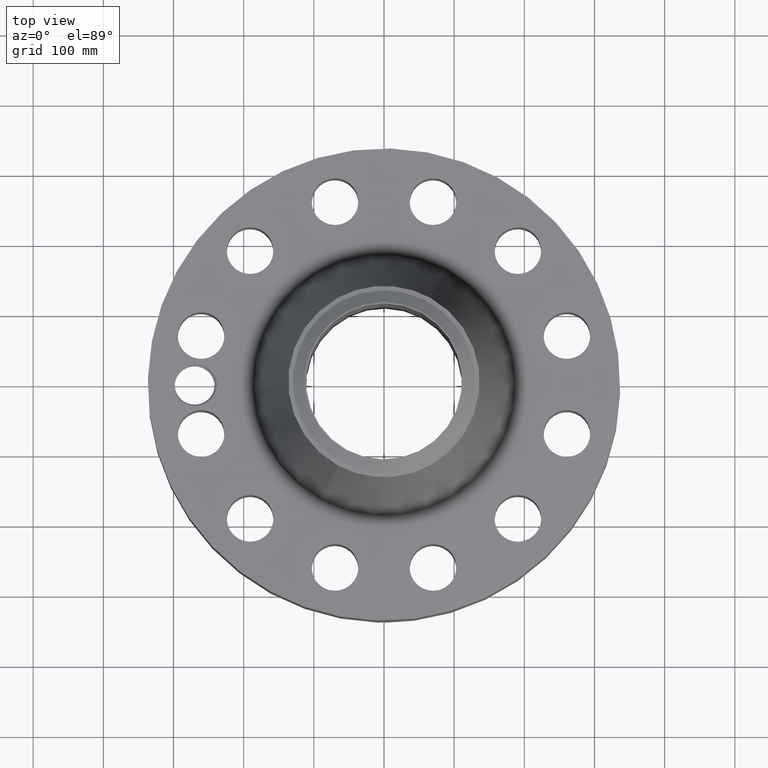
[diagram: clean part render]
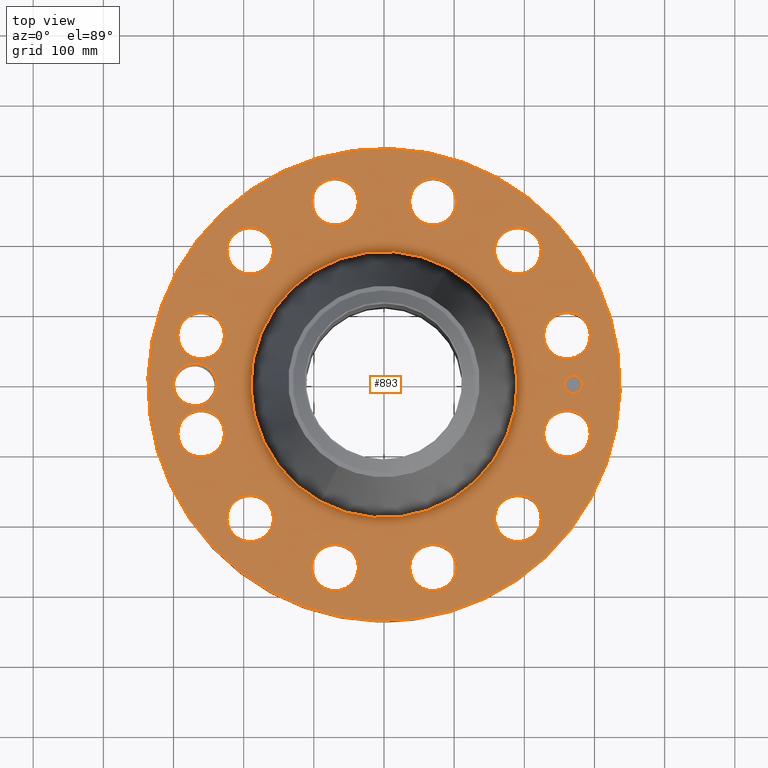
[diagram: same view with one face highlighted and labeled with its STEP entity id]
A machine part, top view. The second image highlights one B-rep face of the part: STEP entity #893.
In plain terms, the highlighted planar face has unit normal (0, 0, -1).
Its self-contained STEP definition (entity closure, byte-faithful):
#58=AXIS2_PLACEMENT_3D('Circle Axis2P3D',#56,#57,$) ;
#474=AXIS2_PLACEMENT_3D('Circle Axis2P3D',#472,#473,$) ;
#574=AXIS2_PLACEMENT_3D('Plane Axis2P3D',#571,#572,#573) ;
#625=AXIS2_PLACEMENT_3D('Circle Axis2P3D',#623,#624,$) ;
#632=AXIS2_PLACEMENT_3D('Circle Axis2P3D',#630,#631,$) ;
#643=AXIS2_PLACEMENT_3D('Circle Axis2P3D',#641,#642,$) ;
#652=AXIS2_PLACEMENT_3D('Circle Axis2P3D',#650,#651,$) ;
#661=AXIS2_PLACEMENT_3D('Circle Axis2P3D',#659,#660,$) ;
#670=AXIS2_PLACEMENT_3D('Circle Axis2P3D',#668,#669,$) ;
#679=AXIS2_PLACEMENT_3D('Circle Axis2P3D',#677,#678,$) ;
#688=AXIS2_PLACEMENT_3D('Circle Axis2P3D',#686,#687,$) ;
#697=AXIS2_PLACEMENT_3D('Circle Axis2P3D',#695,#696,$) ;
#706=AXIS2_PLACEMENT_3D('Circle Axis2P3D',#704,#705,$) ;
#715=AXIS2_PLACEMENT_3D('Circle Axis2P3D',#713,#714,$) ;
#724=AXIS2_PLACEMENT_3D('Circle Axis2P3D',#722,#723,$) ;
#733=AXIS2_PLACEMENT_3D('Circle Axis2P3D',#731,#732,$) ;
#742=AXIS2_PLACEMENT_3D('Circle Axis2P3D',#740,#741,$) ;
#751=AXIS2_PLACEMENT_3D('Circle Axis2P3D',#749,#750,$) ;
#760=AXIS2_PLACEMENT_3D('Circle Axis2P3D',#758,#759,$) ;
#769=AXIS2_PLACEMENT_3D('Circle Axis2P3D',#767,#768,$) ;
#778=AXIS2_PLACEMENT_3D('Circle Axis2P3D',#776,#777,$) ;
#787=AXIS2_PLACEMENT_3D('Circle Axis2P3D',#785,#786,$) ;
#796=AXIS2_PLACEMENT_3D('Circle Axis2P3D',#794,#795,$) ;
#805=AXIS2_PLACEMENT_3D('Circle Axis2P3D',#803,#804,$) ;
#814=AXIS2_PLACEMENT_3D('Circle Axis2P3D',#812,#813,$) ;
#823=AXIS2_PLACEMENT_3D('Circle Axis2P3D',#821,#822,$) ;
#832=AXIS2_PLACEMENT_3D('Circle Axis2P3D',#830,#831,$) ;
#841=AXIS2_PLACEMENT_3D('Circle Axis2P3D',#839,#840,$) ;
#850=AXIS2_PLACEMENT_3D('Circle Axis2P3D',#848,#849,$) ;
#859=AXIS2_PLACEMENT_3D('Circle Axis2P3D',#857,#858,$) ;
#868=AXIS2_PLACEMENT_3D('Circle Axis2P3D',#866,#867,$) ;
#877=AXIS2_PLACEMENT_3D('Circle Axis2P3D',#875,#876,$) ;
#886=AXIS2_PLACEMENT_3D('Circle Axis2P3D',#884,#885,$) ;
#53=CARTESIAN_POINT('Vertex',(-6.35238838653,-11.6279689451,6.75000000003)) ;
#56=CARTESIAN_POINT('Axis2P3D Location',(0.,0.,6.75000000003)) ;
#60=CARTESIAN_POINT('Vertex',(6.35238838653,11.6279689451,6.75000000003)) ;
#472=CARTESIAN_POINT('Axis2P3D Location',(0.,0.,6.75000000003)) ;
#571=CARTESIAN_POINT('Axis2P3D Location',(0.,13.2500000001,6.75000000003)) ;
#581=CARTESIAN_POINT('Control Point',(-9.37500000004,-4.47585975282E-015,6.75000000003)) ;
#582=CARTESIAN_POINT('Control Point',(-9.37825524635,0.101424776342,6.75000000003)) ;
#583=CARTESIAN_POINT('Control Point',(-9.39180302893,0.202362747263,6.75000000003)) ;
#584=CARTESIAN_POINT('Control Point',(-9.41557893795,0.301404844782,6.75000000003)) ;
#585=CARTESIAN_POINT('Control Point',(-9.48287059956,0.492934467967,6.75000000003)) ;
#586=CARTESIAN_POINT('Control Point',(-9.58716255288,0.666307506765,6.75000000003)) ;
#587=CARTESIAN_POINT('Control Point',(-9.64794895247,0.747207554516,6.75000000003)) ;
#588=CARTESIAN_POINT('Control Point',(-9.78500522288,0.895116327964,6.75000000003)) ;
#589=CARTESIAN_POINT('Control Point',(-9.94879646745,1.01165459245,6.75000000003)) ;
#590=CARTESIAN_POINT('Control Point',(-10.0362928979,1.06115813568,6.75000000003)) ;
#591=CARTESIAN_POINT('Control Point',(-10.1805972996,1.12407480391,6.75000000003)) ;
#592=CARTESIAN_POINT('Control Point',(-10.3322408931,1.16261204053,6.75000000003)) ;
#593=CARTESIAN_POINT('Control Point',(-10.3880839914,1.17332130889,6.75000000003)) ;
#594=CARTESIAN_POINT('Control Point',(-10.480892733,1.18546274161,6.75000000003)) ;
#595=CARTESIAN_POINT('Control Point',(-10.5741692607,1.18847142452,6.75000000003)) ;
#596=CARTESIAN_POINT('Control Point',(-10.6108748096,1.18823749614,6.75000000003)) ;
#597=CARTESIAN_POINT('Control Point',(-10.6475058661,1.18658796382,6.75000000003)) ;
#598=CARTESIAN_POINT('Control Point',(-10.683989765,1.18353082243,6.75000000003)) ;
#599=CARTESIAN_POINT('Vertex',(-9.37500000004,-4.47585975282E-015,6.75000000003)) ;
#601=CARTESIAN_POINT('Vertex',(-10.683989765,1.18353082243,6.75000000003)) ;
#605=CARTESIAN_POINT('Control Point',(-9.37500000004,-2.23792987641E-015,6.75000000003)) ;
#606=CARTESIAN_POINT('Control Point',(-9.37825587378,-0.101444324165,6.75000000003)) ;
#607=CARTESIAN_POINT('Control Point',(-9.39180823055,-0.202401655373,6.75000000003)) ;
#608=CARTESIAN_POINT('Control Point',(-9.41558389196,-0.301442004136,6.75000000003)) ;
#609=CARTESIAN_POINT('Control Point',(-9.48288155818,-0.49299070682,6.75000000003)) ;
#610=CARTESIAN_POINT('Control Point',(-9.58713983457,-0.666296917804,6.75000000003)) ;
#611=CARTESIAN_POINT('Control Point',(-9.64791466841,-0.747169856444,6.75000000003)) ;
#612=CARTESIAN_POINT('Control Point',(-9.78496489317,-0.895071517022,6.75000000003)) ;
#613=CARTESIAN_POINT('Control Point',(-9.9486868583,-1.01158390481,6.75000000003)) ;
#614=CARTESIAN_POINT('Control Point',(-10.0361742772,-1.06109945548,6.75000000003)) ;
#615=CARTESIAN_POINT('Control Point',(-10.2144182507,-1.13885713299,6.75000000003)) ;
#616=CARTESIAN_POINT('Control Point',(-10.4039290856,-1.17941133032,6.75000000003)) ;
#617=CARTESIAN_POINT('Control Point',(-10.4973307849,-1.18997717872,6.75000000003)) ;
#618=CARTESIAN_POINT('Control Point',(-10.591046514,-1.19131453784,6.75000000003)) ;
#619=CARTESIAN_POINT('Control Point',(-10.6838739064,-1.18353659139,6.75000000003)) ;
#620=CARTESIAN_POINT('Vertex',(-10.6838739064,-1.18353659139,6.75000000003)) ;
#623=CARTESIAN_POINT('Axis2P3D Location',(-10.625,0.,6.75000000003)) ;
#627=CARTESIAN_POINT('Vertex',(-11.6649353359,0.568119263248,6.75000000003)) ;
#630=CARTESIAN_POINT('Axis2P3D Location',(-10.625,0.,6.75000000003)) ;
#641=CARTESIAN_POINT('Axis2P3D Location',(10.2629619044,-2.74995235423,6.75000000003)) ;
#645=CARTESIAN_POINT('Vertex',(9.11332874828,-2.12190489865,6.75000000003)) ;
#647=CARTESIAN_POINT('Vertex',(11.4125950604,-3.3779998098,6.75000000003)) ;
#650=CARTESIAN_POINT('Axis2P3D Location',(10.2629619044,-2.74995235423,6.75000000003)) ;
#659=CARTESIAN_POINT('Axis2P3D Location',(0.,0.,6.75000000003)) ;
#663=CARTESIAN_POINT('Vertex',(-3.58213758642,-6.55705886943,6.75000000003)) ;
#665=CARTESIAN_POINT('Vertex',(3.58213758642,6.55705886943,6.75000000003)) ;
#668=CARTESIAN_POINT('Axis2P3D Location',(0.,0.,6.75000000003)) ;
#677=CARTESIAN_POINT('Axis2P3D Location',(7.51300955014,-7.51300955014,6.75000000003)) ;
#681=CARTESIAN_POINT('Vertex',(8.19459734055,-8.63173117949,6.75000000003)) ;
#683=CARTESIAN_POINT('Vertex',(6.83142175973,-6.39428792079,6.75000000003)) ;
#686=CARTESIAN_POINT('Axis2P3D Location',(7.51300955014,-7.51300955014,6.75000000003)) ;
#695=CARTESIAN_POINT('Axis2P3D Location',(2.74995235423,-10.2629619044,6.75000000003)) ;
#699=CARTESIAN_POINT('Vertex',(2.78086388096,-11.5725971503,6.75000000003)) ;
#701=CARTESIAN_POINT('Vertex',(2.71904082749,-8.95332665838,6.75000000003)) ;
#704=CARTESIAN_POINT('Axis2P3D Location',(2.74995235423,-10.2629619044,6.75000000003)) ;
#713=CARTESIAN_POINT('Axis2P3D Location',(-2.74995235423,-10.2629619044,6.75000000003)) ;
#717=CARTESIAN_POINT('Vertex',(-3.3779998098,-11.4125950604,6.75000000003)) ;
#719=CARTESIAN_POINT('Vertex',(-2.12190489865,-9.11332874828,6.75000000003)) ;
#722=CARTESIAN_POINT('Axis2P3D Location',(-2.74995235423,-10.2629619044,6.75000000003)) ;
#731=CARTESIAN_POINT('Axis2P3D Location',(-7.51300955014,-7.51300955014,6.75000000003)) ;
#735=CARTESIAN_POINT('Vertex',(-8.63173117949,-8.19459734055,6.75000000003)) ;
#737=CARTESIAN_POINT('Vertex',(-6.39428792079,-6.83142175973,6.75000000003)) ;
#740=CARTESIAN_POINT('Axis2P3D Location',(-7.51300955014,-7.51300955014,6.75000000003)) ;
#749=CARTESIAN_POINT('Axis2P3D Location',(-10.2629619044,-2.74995235423,6.75000000003)) ;
#753=CARTESIAN_POINT('Vertex',(-11.5725971503,-2.78086388096,6.75000000003)) ;
#755=CARTESIAN_POINT('Vertex',(-8.95332665838,-2.71904082749,6.75000000003)) ;
#758=CARTESIAN_POINT('Axis2P3D Location',(-10.2629619044,-2.74995235423,6.75000000003)) ;
#767=CARTESIAN_POINT('Axis2P3D Location',(-10.2629619044,2.74995235423,6.75000000003)) ;
#771=CARTESIAN_POINT('Vertex',(-11.4125950604,3.3779998098,6.75000000003)) ;
#773=CARTESIAN_POINT('Vertex',(-9.11332874828,2.12190489865,6.75000000003)) ;
#776=CARTESIAN_POINT('Axis2P3D Location',(-10.2629619044,2.74995235423,6.75000000003)) ;
#785=CARTESIAN_POINT('Axis2P3D Location',(-7.51300955014,7.51300955014,6.75000000003)) ;
#789=CARTESIAN_POINT('Vertex',(-8.19459734055,8.63173117949,6.75000000003)) ;
#791=CARTESIAN_POINT('Vertex',(-6.83142175973,6.39428792079,6.75000000003)) ;
#794=CARTESIAN_POINT('Axis2P3D Location',(-7.51300955014,7.51300955014,6.75000000003)) ;
#803=CARTESIAN_POINT('Axis2P3D Location',(-2.74995235423,10.2629619044,6.75000000003)) ;
#807=CARTESIAN_POINT('Vertex',(-2.78086388096,11.5725971503,6.75000000003)) ;
#809=CARTESIAN_POINT('Vertex',(-2.71904082749,8.95332665838,6.75000000003)) ;
#812=CARTESIAN_POINT('Axis2P3D Location',(-2.74995235423,10.2629619044,6.75000000003)) ;
#821=CARTESIAN_POINT('Axis2P3D Location',(2.74995235423,10.2629619044,6.75000000003)) ;
#825=CARTESIAN_POINT('Vertex',(3.3779998098,11.4125950604,6.75000000003)) ;
#827=CARTESIAN_POINT('Vertex',(2.12190489865,9.11332874828,6.75000000003)) ;
#830=CARTESIAN_POINT('Axis2P3D Location',(2.74995235423,10.2629619044,6.75000000003)) ;
#839=CARTESIAN_POINT('Axis2P3D Location',(7.51300955014,7.51300955014,6.75000000003)) ;
#843=CARTESIAN_POINT('Vertex',(8.63173117949,8.19459734055,6.75000000003)) ;
#845=CARTESIAN_POINT('Vertex',(6.39428792079,6.83142175973,6.75000000003)) ;
#848=CARTESIAN_POINT('Axis2P3D Location',(7.51300955014,7.51300955014,6.75000000003)) ;
#857=CARTESIAN_POINT('Axis2P3D Location',(10.2629619044,2.74995235423,6.75000000003)) ;
#861=CARTESIAN_POINT('Vertex',(11.5725971503,2.78086388096,6.75000000003)) ;
#863=CARTESIAN_POINT('Vertex',(8.95332665838,2.71904082749,6.75000000003)) ;
#866=CARTESIAN_POINT('Axis2P3D Location',(10.2629619044,2.74995235423,6.75000000003)) ;
#875=CARTESIAN_POINT('Axis2P3D Location',(10.625,0.,6.75000000003)) ;
#879=CARTESIAN_POINT('Vertex',(10.625,0.499999995002,6.75000000003)) ;
#881=CARTESIAN_POINT('Vertex',(10.625,-0.499999995002,6.75000000003)) ;
#884=CARTESIAN_POINT('Axis2P3D Location',(10.625,0.,6.75000000003)) ;
#57=DIRECTION('Axis2P3D Direction',(0.,0.,-0.0393700787402)) ;
#473=DIRECTION('Axis2P3D Direction',(0.,0.,-0.0393700787402)) ;
#572=DIRECTION('Axis2P3D Direction',(0.,0.,-0.0393700787402)) ;
#573=DIRECTION('Axis2P3D XDirection',(0.0393700787402,0.,0.)) ;
#624=DIRECTION('Axis2P3D Direction',(0.,0.,-0.0393700787402)) ;
#631=DIRECTION('Axis2P3D Direction',(0.,0.,-0.0393700787402)) ;
#642=DIRECTION('Axis2P3D Direction',(0.,0.,-0.0393700787402)) ;
#651=DIRECTION('Axis2P3D Direction',(0.,0.,-0.0393700787402)) ;
#660=DIRECTION('Axis2P3D Direction',(0.,0.,-0.0393700787402)) ;
#669=DIRECTION('Axis2P3D Direction',(0.,0.,-0.0393700787402)) ;
#678=DIRECTION('Axis2P3D Direction',(0.,0.,-0.0393700787402)) ;
#687=DIRECTION('Axis2P3D Direction',(0.,0.,-0.0393700787402)) ;
#696=DIRECTION('Axis2P3D Direction',(0.,0.,-0.0393700787402)) ;
#705=DIRECTION('Axis2P3D Direction',(0.,0.,-0.0393700787402)) ;
#714=DIRECTION('Axis2P3D Direction',(0.,0.,-0.0393700787402)) ;
#723=DIRECTION('Axis2P3D Direction',(0.,0.,-0.0393700787402)) ;
#732=DIRECTION('Axis2P3D Direction',(0.,0.,-0.0393700787402)) ;
#741=DIRECTION('Axis2P3D Direction',(0.,0.,-0.0393700787402)) ;
#750=DIRECTION('Axis2P3D Direction',(0.,0.,-0.0393700787402)) ;
#759=DIRECTION('Axis2P3D Direction',(0.,0.,-0.0393700787402)) ;
#768=DIRECTION('Axis2P3D Direction',(0.,0.,-0.0393700787402)) ;
#777=DIRECTION('Axis2P3D Direction',(0.,0.,-0.0393700787402)) ;
#786=DIRECTION('Axis2P3D Direction',(0.,0.,-0.0393700787402)) ;
#795=DIRECTION('Axis2P3D Direction',(0.,0.,-0.0393700787402)) ;
#804=DIRECTION('Axis2P3D Direction',(0.,0.,-0.0393700787402)) ;
#813=DIRECTION('Axis2P3D Direction',(0.,0.,-0.0393700787402)) ;
#822=DIRECTION('Axis2P3D Direction',(0.,0.,-0.0393700787402)) ;
#831=DIRECTION('Axis2P3D Direction',(0.,0.,-0.0393700787402)) ;
#840=DIRECTION('Axis2P3D Direction',(0.,0.,-0.0393700787402)) ;
#849=DIRECTION('Axis2P3D Direction',(0.,0.,-0.0393700787402)) ;
#858=DIRECTION('Axis2P3D Direction',(0.,0.,-0.0393700787402)) ;
#867=DIRECTION('Axis2P3D Direction',(0.,0.,-0.0393700787402)) ;
#876=DIRECTION('Axis2P3D Direction',(0.,0.,-0.0393700787402)) ;
#885=DIRECTION('Axis2P3D Direction',(0.,0.,-0.0393700787402)) ;
#577=ORIENTED_EDGE('',*,*,#476,.F.) ;
#578=ORIENTED_EDGE('',*,*,#62,.F.) ;
#636=ORIENTED_EDGE('',*,*,#603,.F.) ;
#637=ORIENTED_EDGE('',*,*,#622,.T.) ;
#638=ORIENTED_EDGE('',*,*,#629,.T.) ;
#639=ORIENTED_EDGE('',*,*,#634,.T.) ;
#656=ORIENTED_EDGE('',*,*,#649,.T.) ;
#657=ORIENTED_EDGE('',*,*,#654,.T.) ;
#674=ORIENTED_EDGE('',*,*,#667,.T.) ;
#675=ORIENTED_EDGE('',*,*,#672,.T.) ;
#692=ORIENTED_EDGE('',*,*,#685,.T.) ;
#693=ORIENTED_EDGE('',*,*,#690,.T.) ;
#710=ORIENTED_EDGE('',*,*,#703,.T.) ;
#711=ORIENTED_EDGE('',*,*,#708,.T.) ;
#728=ORIENTED_EDGE('',*,*,#721,.T.) ;
#729=ORIENTED_EDGE('',*,*,#726,.T.) ;
#746=ORIENTED_EDGE('',*,*,#739,.T.) ;
#747=ORIENTED_EDGE('',*,*,#744,.T.) ;
#764=ORIENTED_EDGE('',*,*,#757,.T.) ;
#765=ORIENTED_EDGE('',*,*,#762,.T.) ;
#782=ORIENTED_EDGE('',*,*,#775,.T.) ;
#783=ORIENTED_EDGE('',*,*,#780,.T.) ;
#800=ORIENTED_EDGE('',*,*,#793,.T.) ;
#801=ORIENTED_EDGE('',*,*,#798,.T.) ;
#818=ORIENTED_EDGE('',*,*,#811,.T.) ;
#819=ORIENTED_EDGE('',*,*,#816,.T.) ;
#836=ORIENTED_EDGE('',*,*,#829,.T.) ;
#837=ORIENTED_EDGE('',*,*,#834,.T.) ;
#854=ORIENTED_EDGE('',*,*,#847,.T.) ;
#855=ORIENTED_EDGE('',*,*,#852,.T.) ;
#872=ORIENTED_EDGE('',*,*,#865,.T.) ;
#873=ORIENTED_EDGE('',*,*,#870,.T.) ;
#890=ORIENTED_EDGE('',*,*,#883,.T.) ;
#891=ORIENTED_EDGE('',*,*,#888,.T.) ;
#640=FACE_BOUND('',#635,.T.) ;
#658=FACE_BOUND('',#655,.T.) ;
#676=FACE_BOUND('',#673,.T.) ;
#694=FACE_BOUND('',#691,.T.) ;
#712=FACE_BOUND('',#709,.T.) ;
#730=FACE_BOUND('',#727,.T.) ;
#748=FACE_BOUND('',#745,.T.) ;
#766=FACE_BOUND('',#763,.T.) ;
#784=FACE_BOUND('',#781,.T.) ;
#802=FACE_BOUND('',#799,.T.) ;
#820=FACE_BOUND('',#817,.T.) ;
#838=FACE_BOUND('',#835,.T.) ;
#856=FACE_BOUND('',#853,.T.) ;
#874=FACE_BOUND('',#871,.T.) ;
#892=FACE_BOUND('',#889,.T.) ;
#893=ADVANCED_FACE('PartBody',(#579,#640,#658,#676,#694,#712,#730,#748,#766,#784,#802,#820,#838,#856,#874,#892),#575,.F.) ;
#580=B_SPLINE_CURVE_WITH_KNOTS('',5,(#581,#582,#583,#584,#585,#586,#587,#588,#589,#590,#591,#592,#593,#594,#595,#596,#597,#598),.UNSPECIFIED.,.F.,.U.,(6,3,3,3,3,6),(0.,17.7849897923,35.572833761,53.3542619456,63.5114907238,70.1022142467),.UNSPECIFIED.) ;
#604=B_SPLINE_CURVE_WITH_KNOTS('',5,(#605,#606,#607,#608,#609,#610,#611,#612,#613,#614,#615,#616,#617,#618,#619),.UNSPECIFIED.,.F.,.U.,(6,3,3,3,6),(0.,17.788417533,35.5917837205,53.4045665197,70.1678688564),.UNSPECIFIED.) ;
#59=CIRCLE('generated circle',#58,13.2500000001) ;
#475=CIRCLE('generated circle',#474,13.2500000001) ;
#626=CIRCLE('generated circle',#625,1.185) ;
#633=CIRCLE('generated circle',#632,1.185) ;
#644=CIRCLE('generated circle',#643,1.31000000001) ;
#653=CIRCLE('generated circle',#652,1.31000000001) ;
#662=CIRCLE('generated circle',#661,7.47172876282) ;
#671=CIRCLE('generated circle',#670,7.47172876282) ;
#680=CIRCLE('generated circle',#679,1.31000000001) ;
#689=CIRCLE('generated circle',#688,1.31000000001) ;
#698=CIRCLE('generated circle',#697,1.31000000001) ;
#707=CIRCLE('generated circle',#706,1.31000000001) ;
#716=CIRCLE('generated circle',#715,1.31000000001) ;
#725=CIRCLE('generated circle',#724,1.31000000001) ;
#734=CIRCLE('generated circle',#733,1.31000000001) ;
#743=CIRCLE('generated circle',#742,1.31000000001) ;
#752=CIRCLE('generated circle',#751,1.31000000001) ;
#761=CIRCLE('generated circle',#760,1.31000000001) ;
#770=CIRCLE('generated circle',#769,1.31000000001) ;
#779=CIRCLE('generated circle',#778,1.31000000001) ;
#788=CIRCLE('generated circle',#787,1.31000000001) ;
#797=CIRCLE('generated circle',#796,1.31000000001) ;
#806=CIRCLE('generated circle',#805,1.31000000001) ;
#815=CIRCLE('generated circle',#814,1.31000000001) ;
#824=CIRCLE('generated circle',#823,1.31000000001) ;
#833=CIRCLE('generated circle',#832,1.31000000001) ;
#842=CIRCLE('generated circle',#841,1.31000000001) ;
#851=CIRCLE('generated circle',#850,1.31000000001) ;
#860=CIRCLE('generated circle',#859,1.31000000001) ;
#869=CIRCLE('generated circle',#868,1.31000000001) ;
#878=CIRCLE('generated circle',#877,0.499999995002) ;
#887=CIRCLE('generated circle',#886,0.499999995002) ;
#62=EDGE_CURVE('',#54,#61,#59,.T.) ;
#476=EDGE_CURVE('',#61,#54,#475,.T.) ;
#603=EDGE_CURVE('',#600,#602,#580,.T.) ;
#622=EDGE_CURVE('',#600,#621,#604,.T.) ;
#629=EDGE_CURVE('',#621,#628,#626,.T.) ;
#634=EDGE_CURVE('',#628,#602,#633,.T.) ;
#649=EDGE_CURVE('',#646,#648,#644,.T.) ;
#654=EDGE_CURVE('',#648,#646,#653,.T.) ;
#667=EDGE_CURVE('',#664,#666,#662,.T.) ;
#672=EDGE_CURVE('',#666,#664,#671,.T.) ;
#685=EDGE_CURVE('',#682,#684,#680,.T.) ;
#690=EDGE_CURVE('',#684,#682,#689,.T.) ;
#703=EDGE_CURVE('',#700,#702,#698,.T.) ;
#708=EDGE_CURVE('',#702,#700,#707,.T.) ;
#721=EDGE_CURVE('',#718,#720,#716,.T.) ;
#726=EDGE_CURVE('',#720,#718,#725,.T.) ;
#739=EDGE_CURVE('',#736,#738,#734,.T.) ;
#744=EDGE_CURVE('',#738,#736,#743,.T.) ;
#757=EDGE_CURVE('',#754,#756,#752,.T.) ;
#762=EDGE_CURVE('',#756,#754,#761,.T.) ;
#775=EDGE_CURVE('',#772,#774,#770,.T.) ;
#780=EDGE_CURVE('',#774,#772,#779,.T.) ;
#793=EDGE_CURVE('',#790,#792,#788,.T.) ;
#798=EDGE_CURVE('',#792,#790,#797,.T.) ;
#811=EDGE_CURVE('',#808,#810,#806,.T.) ;
#816=EDGE_CURVE('',#810,#808,#815,.T.) ;
#829=EDGE_CURVE('',#826,#828,#824,.T.) ;
#834=EDGE_CURVE('',#828,#826,#833,.T.) ;
#847=EDGE_CURVE('',#844,#846,#842,.T.) ;
#852=EDGE_CURVE('',#846,#844,#851,.T.) ;
#865=EDGE_CURVE('',#862,#864,#860,.T.) ;
#870=EDGE_CURVE('',#864,#862,#869,.T.) ;
#883=EDGE_CURVE('',#880,#882,#878,.T.) ;
#888=EDGE_CURVE('',#882,#880,#887,.T.) ;
#576=EDGE_LOOP('',(#577,#578)) ;
#635=EDGE_LOOP('',(#636,#637,#638,#639)) ;
#655=EDGE_LOOP('',(#656,#657)) ;
#673=EDGE_LOOP('',(#674,#675)) ;
#691=EDGE_LOOP('',(#692,#693)) ;
#709=EDGE_LOOP('',(#710,#711)) ;
#727=EDGE_LOOP('',(#728,#729)) ;
#745=EDGE_LOOP('',(#746,#747)) ;
#763=EDGE_LOOP('',(#764,#765)) ;
#781=EDGE_LOOP('',(#782,#783)) ;
#799=EDGE_LOOP('',(#800,#801)) ;
#817=EDGE_LOOP('',(#818,#819)) ;
#835=EDGE_LOOP('',(#836,#837)) ;
#853=EDGE_LOOP('',(#854,#855)) ;
#871=EDGE_LOOP('',(#872,#873)) ;
#889=EDGE_LOOP('',(#890,#891)) ;
#579=FACE_OUTER_BOUND('',#576,.T.) ;
#575=PLANE('',#574) ;
#54=VERTEX_POINT('',#53) ;
#61=VERTEX_POINT('',#60) ;
#600=VERTEX_POINT('',#599) ;
#602=VERTEX_POINT('',#601) ;
#621=VERTEX_POINT('',#620) ;
#628=VERTEX_POINT('',#627) ;
#646=VERTEX_POINT('',#645) ;
#648=VERTEX_POINT('',#647) ;
#664=VERTEX_POINT('',#663) ;
#666=VERTEX_POINT('',#665) ;
#682=VERTEX_POINT('',#681) ;
#684=VERTEX_POINT('',#683) ;
#700=VERTEX_POINT('',#699) ;
#702=VERTEX_POINT('',#701) ;
#718=VERTEX_POINT('',#717) ;
#720=VERTEX_POINT('',#719) ;
#736=VERTEX_POINT('',#735) ;
#738=VERTEX_POINT('',#737) ;
#754=VERTEX_POINT('',#753) ;
#756=VERTEX_POINT('',#755) ;
#772=VERTEX_POINT('',#771) ;
#774=VERTEX_POINT('',#773) ;
#790=VERTEX_POINT('',#789) ;
#792=VERTEX_POINT('',#791) ;
#808=VERTEX_POINT('',#807) ;
#810=VERTEX_POINT('',#809) ;
#826=VERTEX_POINT('',#825) ;
#828=VERTEX_POINT('',#827) ;
#844=VERTEX_POINT('',#843) ;
#846=VERTEX_POINT('',#845) ;
#862=VERTEX_POINT('',#861) ;
#864=VERTEX_POINT('',#863) ;
#880=VERTEX_POINT('',#879) ;
#882=VERTEX_POINT('',#881) ;